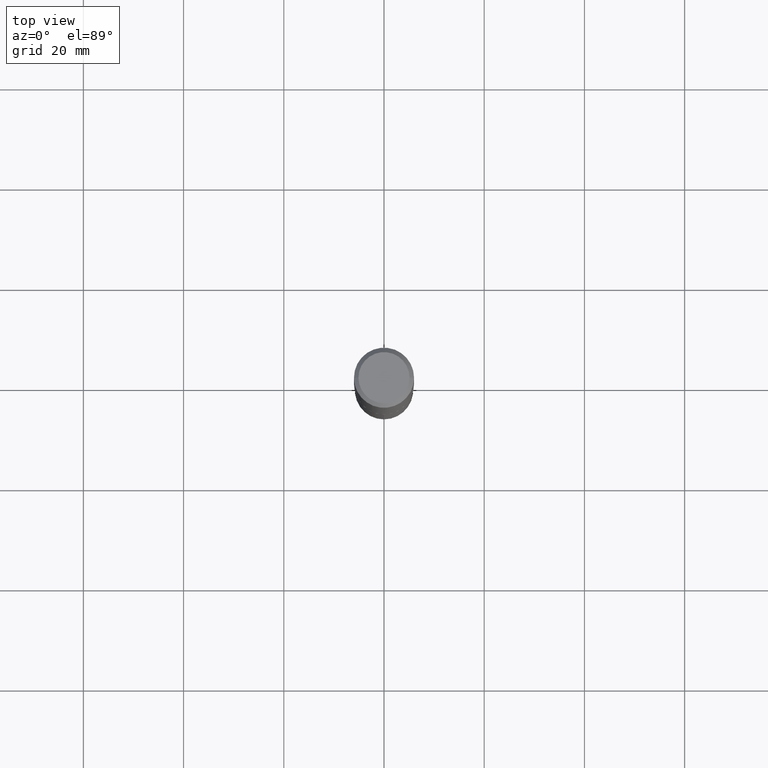
[diagram: clean part render]
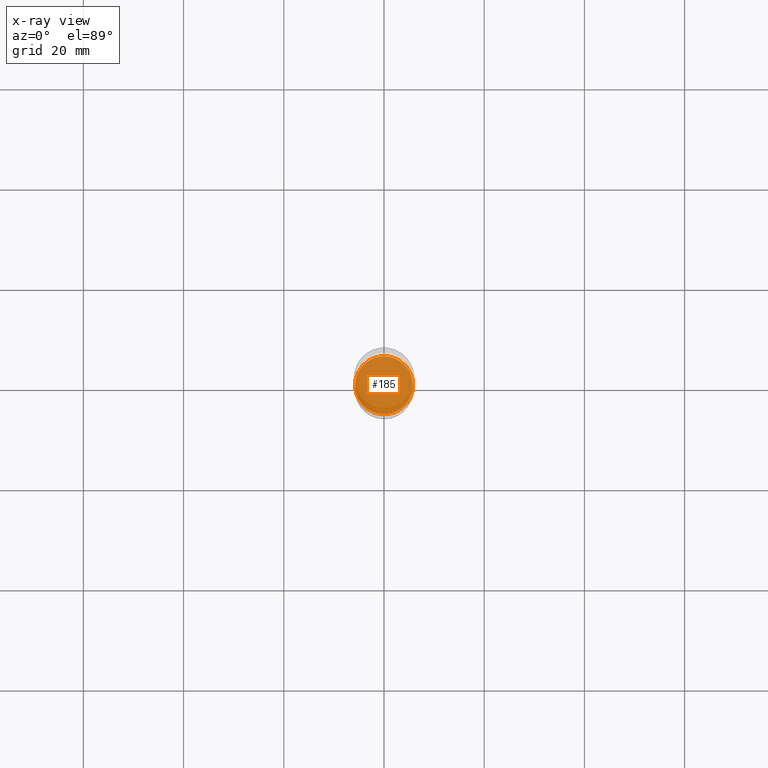
[diagram: x-ray — body ghosted, one internal face saturated and labeled with its STEP entity id]
A machine part, top view, then the same camera in x-ray: the body is ghosted and one INTERNAL B-rep face — a face not visible from any outside direction — is saturated and labeled: STEP entity #185.
In plain terms, the highlighted planar face has unit normal (-0, 0, 1).
Its self-contained STEP definition (entity closure, byte-faithful):
#29 = DIRECTION ( 'NONE',  ( 1.000000000000000000, -6.982962677686264344E-15, 0.000000000000000000 ) ) ;
#31 = ORIENTED_EDGE ( 'NONE', *, *, #371, .F. ) ;
#56 = CARTESIAN_POINT ( 'NONE',  ( 0.2278499999999999970, -1.374735862356099746E-14, -3.481700000000000017 ) ) ;
#121 = PLANE ( 'NONE',  #429 ) ;
#122 = FACE_OUTER_BOUND ( 'NONE', #290, .T. ) ;
#126 = DIRECTION ( 'NONE',  ( 1.000000000000000000, -6.982962677686265922E-15, 4.876176775795935793E-29 ) ) ;
#185 = ADVANCED_FACE ( 'NONE', ( #122 ), #121, .F. ) ;
#188 = AXIS2_PLACEMENT_3D ( 'NONE', #352, #248, #29 ) ;
#248 = DIRECTION ( 'NONE',  ( -2.445468806185136597E-29, 3.491481338843145583E-15, 1.000000000000000000 ) ) ;
#258 = AXIS2_PLACEMENT_3D ( 'NONE', #320, #384, #323 ) ;
#270 = CIRCLE ( 'NONE', #188, 0.2278499999999999970 ) ;
#282 = VERTEX_POINT ( 'NONE', #311 ) ;
#290 = EDGE_LOOP ( 'NONE', ( #31, #435 ) ) ;
#311 = CARTESIAN_POINT ( 'NONE',  ( -0.2278499999999999970, -1.053466972684668207E-14, -3.481700000000000017 ) ) ;
#320 = CARTESIAN_POINT ( 'NONE',  ( 8.514388742494790971E-29, -1.215629057745018152E-14, -3.481700000000000017 ) ) ;
#323 = DIRECTION ( 'NONE',  ( 1.000000000000000000, -6.982962677686264344E-15, 0.000000000000000000 ) ) ;
#336 = DIRECTION ( 'NONE',  ( -2.438088387897960049E-29, 3.491481338843145188E-15, 1.000000000000000000 ) ) ;
#352 = CARTESIAN_POINT ( 'NONE',  ( 8.514388742494790971E-29, -1.215629057745018152E-14, -3.481700000000000017 ) ) ;
#371 = EDGE_CURVE ( 'NONE', #443, #282, #270, .T. ) ;
#384 = DIRECTION ( 'NONE',  ( -2.445468806185136597E-29, 3.491481338843145583E-15, 1.000000000000000000 ) ) ;
#398 = EDGE_CURVE ( 'NONE', #282, #443, #433, .T. ) ;
#429 = AXIS2_PLACEMENT_3D ( 'NONE', #444, #336, #126 ) ;
#433 = CIRCLE ( 'NONE', #258, 0.2278499999999999970 ) ;
#435 = ORIENTED_EDGE ( 'NONE', *, *, #398, .F. ) ;
#443 = VERTEX_POINT ( 'NONE', #56 ) ;
#444 = CARTESIAN_POINT ( 'NONE',  ( 8.514388742494790971E-29, -1.215629057745018152E-14, -3.481700000000000017 ) ) ;